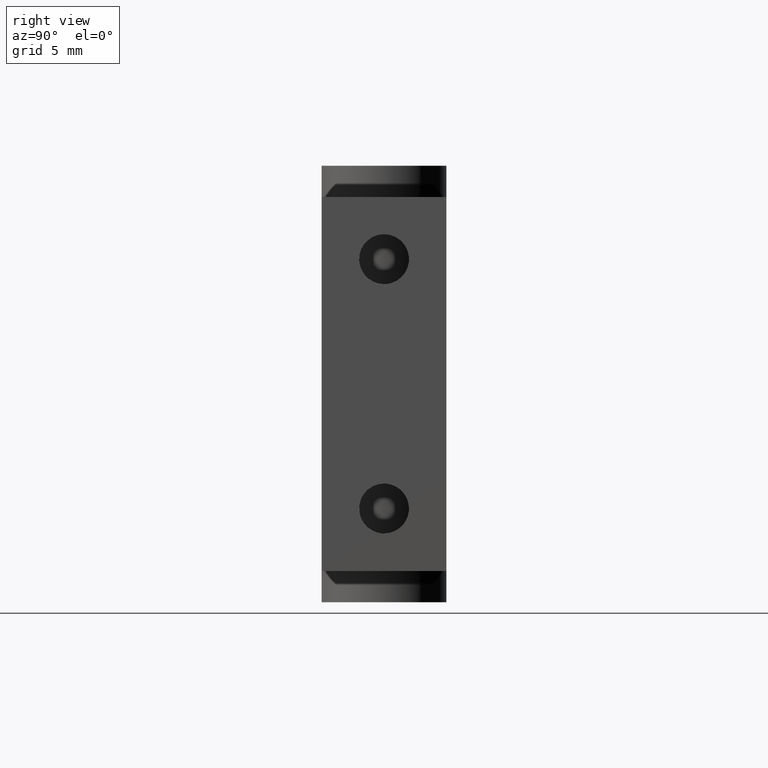
[diagram: clean part render]
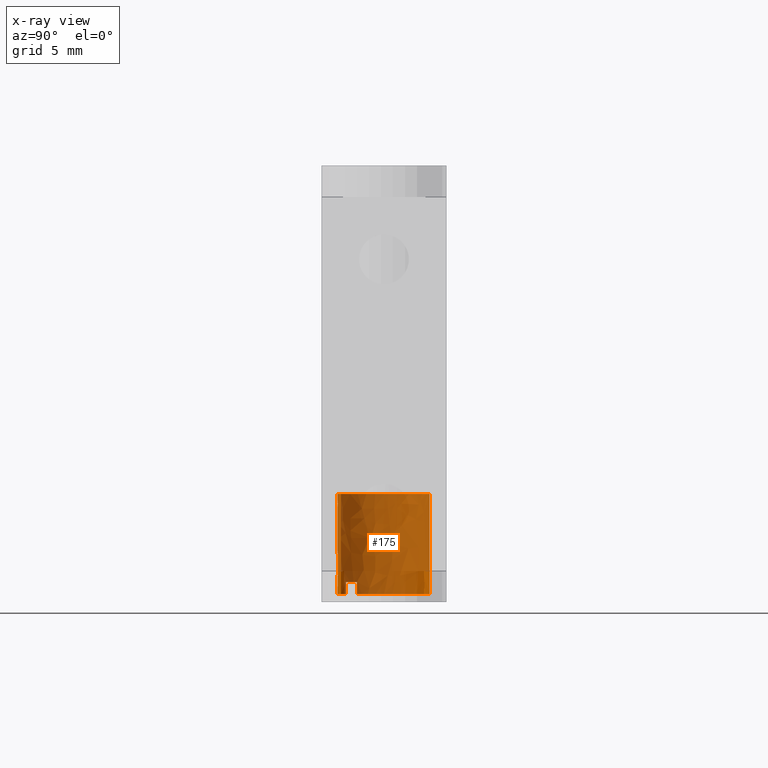
[diagram: x-ray — body ghosted, one internal face saturated and labeled with its STEP entity id]
A machine part, right view, then the same camera in x-ray: the body is ghosted and one INTERNAL B-rep face — a face not visible from any outside direction — is saturated and labeled: STEP entity #175.
In plain terms, the highlighted face is a freeform B-spline surface patch.
Its self-contained STEP definition (entity closure, byte-faithful):
#44=CARTESIAN_POINT('',(8.697600769735709,2.917741187273162,13.661082263071529));
#45=CARTESIAN_POINT('',(8.954197989525007,2.856382736928102,13.661082263071528));
#46=CARTESIAN_POINT('',(9.196147206775740,2.751180223155371,13.661082263071529));
#47=CARTESIAN_POINT('',(11.947327429931113,1.554933016379634,13.661082263071531));
#48=CARTESIAN_POINT('',(10.751080223155370,-1.196247206775738,13.661082263071529));
#49=CARTESIAN_POINT('',(9.554833016379634,-3.947427429931110,13.661082263071531));
#50=CARTESIAN_POINT('',(6.803652793224263,-2.751180223155371,13.661082263071529));
#51=CARTESIAN_POINT('',(8.697600769735709,2.917741187273162,6.890872943423211));
#52=CARTESIAN_POINT('',(8.954197989525007,2.856382736928102,6.890872943423211));
#53=CARTESIAN_POINT('',(9.196147206775740,2.751180223155371,6.890872943423211));
#54=CARTESIAN_POINT('',(11.947327429931113,1.554933016379634,6.890872943423210));
#55=CARTESIAN_POINT('',(10.751080223155370,-1.196247206775738,6.890872943423211));
#56=CARTESIAN_POINT('',(9.554833016379634,-3.947427429931110,6.890872943423210));
#57=CARTESIAN_POINT('',(6.803652793224263,-2.751180223155371,6.890872943423211));
#65=(BOUNDED_SURFACE()B_SPLINE_SURFACE(2,1,((#44,#51),(#45,#52),(#46,#53),(#47,#54),(#48,#55),(#49,#56),(#50,#57)),.UNSPECIFIED.,.F.,.F.,.U.)B_SPLINE_SURFACE_WITH_KNOTS((3,2,2,3),(2,2),(0.0,0.596467529817258,5.567030278294398,10.537593026771541),(0.0,6.770209319648321),.UNSPECIFIED.)GEOMETRIC_REPRESENTATION_ITEM()RATIONAL_B_SPLINE_SURFACE(((0.938140952186599,0.938140952186599),(0.964852813742386,0.964852813742386),(1.0,1.0),(0.707106781186548,0.707106781186548),(1.0,1.0),(0.707106781186548,0.707106781186548),(1.0,1.0)))REPRESENTATION_ITEM('')SURFACE());
#66=CARTESIAN_POINT('',(8.697603648799229,2.917740498818132,13.499982695679510));
#67=VERTEX_POINT('',#66);
#68=CARTESIAN_POINT('',(10.445059090291680,-1.738159090291785,13.499982695679501));
#69=VERTEX_POINT('',#68);
#70=CARTESIAN_POINT('',(8.697603648799230,2.917740498818133,13.499982695679513));
#71=CARTESIAN_POINT('',(9.521912823668753,2.720627863450550,13.499982695679503));
#72=CARTESIAN_POINT('',(10.121220343559671,2.121320343559614,13.499982695679501));
#73=CARTESIAN_POINT('',(11.914109670485615,0.328431016633621,13.499982695679506));
#74=CARTESIAN_POINT('',(10.445059090291680,-1.738159090291785,13.499982695679501));
#82=(BOUNDED_CURVE()B_SPLINE_CURVE(2,(#70,#71,#72,#73,#74),.UNSPECIFIED.,.F.,.U.)B_SPLINE_CURVE_WITH_KNOTS((3,2,3),(0.301673434288160,0.500000000000000,1.0),.UNSPECIFIED.)CURVE()GEOMETRIC_REPRESENTATION_ITEM()RATIONAL_B_SPLINE_CURVE((0.886923667013081,0.906292434024114,1.0,0.763754377434139,1.0))REPRESENTATION_ITEM(''));
#83=EDGE_CURVE('',#67,#69,#82,.T.);
#84=ORIENTED_EDGE('',*,*,#83,.T.);
#85=CARTESIAN_POINT('',(10.445059090291680,-1.738159090291785,12.699999999999999));
#86=VERTEX_POINT('',#85);
#87=CARTESIAN_POINT('',(10.445059090291680,-1.738159090291785,12.699999999999999));
#88=CARTESIAN_POINT('',(10.445059090291680,-1.738159090291785,13.499982695679501));
#89=QUASI_UNIFORM_CURVE('',1,(#87,#88),.UNSPECIFIED.,.F.,.U.);
#90=EDGE_CURVE('',#86,#69,#89,.T.);
#91=ORIENTED_EDGE('',*,*,#90,.F.);
#92=CARTESIAN_POINT('',(9.738059090291770,-2.445159090291685,12.699999999999999));
#93=VERTEX_POINT('',#92);
#94=CARTESIAN_POINT('',(9.738059090291772,-2.445159090291689,12.699999999999999));
#95=CARTESIAN_POINT('',(10.151302215058079,-2.151402215058087,12.699999999999998));
#96=CARTESIAN_POINT('',(10.445059090291680,-1.738159090291786,12.699999999999999));
#104=(BOUNDED_CURVE()B_SPLINE_CURVE(2,(#94,#95,#96),.UNSPECIFIED.,.F.,.U.)CURVE()GEOMETRIC_REPRESENTATION_ITEM()QUASI_UNIFORM_CURVE()RATIONAL_B_SPLINE_CURVE((1.0,0.986017551117179,1.0))REPRESENTATION_ITEM(''));
#105=EDGE_CURVE('',#93,#86,#104,.T.);
#106=ORIENTED_EDGE('',*,*,#105,.F.);
#107=CARTESIAN_POINT('',(9.738059090291770,-2.445159090291685,13.499982695679540));
#108=VERTEX_POINT('',#107);
#109=CARTESIAN_POINT('',(9.738059090291770,-2.445159090291685,12.699999999999999));
#110=CARTESIAN_POINT('',(9.738059090291770,-2.445159090291685,13.499982695679540));
#111=QUASI_UNIFORM_CURVE('',1,(#109,#110),.UNSPECIFIED.,.F.,.U.);
#112=EDGE_CURVE('',#93,#108,#111,.T.);
#113=ORIENTED_EDGE('',*,*,#112,.T.);
#114=CARTESIAN_POINT('',(6.803652793229948,-2.751180223157844,13.499982695679501));
#115=VERTEX_POINT('',#114);
#116=CARTESIAN_POINT('',(9.738059090291770,-2.445159090291685,13.499982695679540));
#117=CARTESIAN_POINT('',(8.357261994674573,-3.426708729791506,13.499982695679513));
#118=CARTESIAN_POINT('',(6.803652793229948,-2.751180223157844,13.499982695679506));
#126=(BOUNDED_CURVE()B_SPLINE_CURVE(2,(#116,#117,#118),.UNSPECIFIED.,.F.,.U.)B_SPLINE_CURVE_WITH_KNOTS((3,3),(0.0,0.362494900660110),.UNSPECIFIED.)CURVE()GEOMETRIC_REPRESENTATION_ITEM()RATIONAL_B_SPLINE_CURVE((1.0,0.828724333033207,0.905794889596901))REPRESENTATION_ITEM(''));
#127=EDGE_CURVE('',#108,#115,#126,.T.);
#128=ORIENTED_EDGE('',*,*,#127,.T.);
#129=CARTESIAN_POINT('',(6.803657362484790,-2.751182209917371,7.056000000000000));
#130=VERTEX_POINT('',#129);
#131=CARTESIAN_POINT('',(6.803652793229948,-2.751180223157844,13.499982695679501));
#132=CARTESIAN_POINT('',(6.803657362484790,-2.751182209917371,7.056000000000000));
#133=QUASI_UNIFORM_CURVE('',1,(#131,#132),.UNSPECIFIED.,.F.,.U.);
#134=EDGE_CURVE('',#115,#130,#133,.T.);
#135=ORIENTED_EDGE('',*,*,#134,.T.);
#136=CARTESIAN_POINT('',(10.999900000000000,0.0,7.056000000000000));
#137=VERTEX_POINT('',#136);
#138=CARTESIAN_POINT('',(10.999900000000000,0.0,7.056000000000000));
#139=CARTESIAN_POINT('',(10.999900000000000,-3.0,7.056000000000000));
#140=CARTESIAN_POINT('',(7.999900000000001,-3.0,7.056000000000000));
#141=CARTESIAN_POINT('',(7.375901701639746,-3.000000000000000,7.056000000000000));
#142=CARTESIAN_POINT('',(6.803657362484790,-2.751182209917371,7.056000000000000));
#150=(BOUNDED_CURVE()B_SPLINE_CURVE(2,(#138,#139,#140,#141,#142),.UNSPECIFIED.,.F.,.U.)B_SPLINE_CURVE_WITH_KNOTS((3,2,3),(0.500000000000000,0.750000000000000,0.817705644592684),.UNSPECIFIED.)CURVE()GEOMETRIC_REPRESENTATION_ITEM()RATIONAL_B_SPLINE_CURVE((1.0,0.707106781186548,1.0,0.920677903293637,0.884320236090854))REPRESENTATION_ITEM(''));
#151=EDGE_CURVE('',#137,#130,#150,.T.);
#152=ORIENTED_EDGE('',*,*,#151,.F.);
#153=CARTESIAN_POINT('',(8.697600769764858,2.917741187266191,7.056000000000001));
#154=VERTEX_POINT('',#153);
#155=CARTESIAN_POINT('',(8.697600769764856,2.917741187266191,7.056000000000002));
#156=CARTESIAN_POINT('',(10.999900000000000,2.367207112398469,7.056000000000000));
#157=CARTESIAN_POINT('',(10.999900000000000,0.0,7.056000000000000));
#165=(BOUNDED_CURVE()B_SPLINE_CURVE(2,(#155,#156,#157),.UNSPECIFIED.,.F.,.U.)B_SPLINE_CURVE_WITH_KNOTS((3,3),(0.289743011629630,0.500000000000000),.UNSPECIFIED.)CURVE()GEOMETRIC_REPRESENTATION_ITEM()RATIONAL_B_SPLINE_CURVE((0.921680391398068,0.753668615592719,1.0))REPRESENTATION_ITEM(''));
#166=EDGE_CURVE('',#154,#137,#165,.T.);
#167=ORIENTED_EDGE('',*,*,#166,.F.);
#168=CARTESIAN_POINT('',(8.697603648799229,2.917740498818132,13.499982695679510));
#169=CARTESIAN_POINT('',(8.697600769764858,2.917741187266191,7.056000000000001));
#170=QUASI_UNIFORM_CURVE('',1,(#168,#169),.UNSPECIFIED.,.F.,.U.);
#171=EDGE_CURVE('',#67,#154,#170,.T.);
#172=ORIENTED_EDGE('',*,*,#171,.F.);
#173=EDGE_LOOP('',(#84,#91,#106,#113,#128,#135,#152,#167,#172));
#174=FACE_OUTER_BOUND('',#173,.T.);
#175=ADVANCED_FACE('',(#174),#65,.T.);